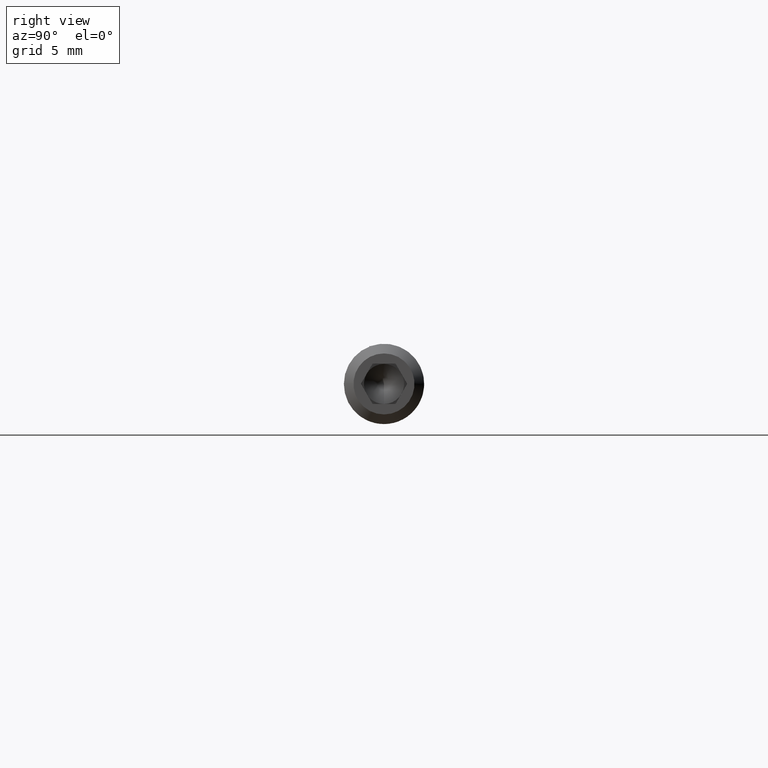
[diagram: clean part render]
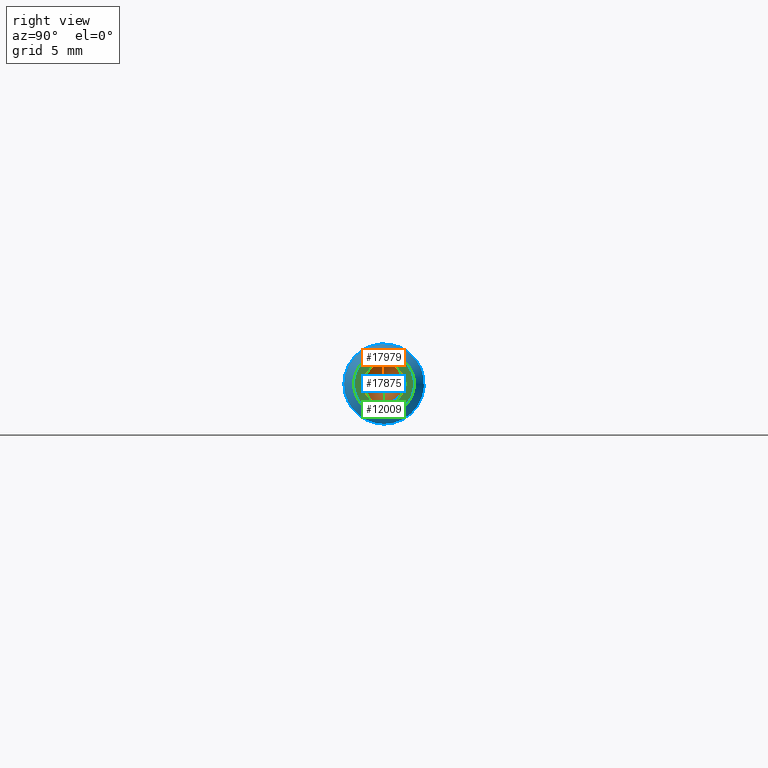
[diagram: same view with three faces highlighted in distinct colors, each labeled with its STEP entity id]
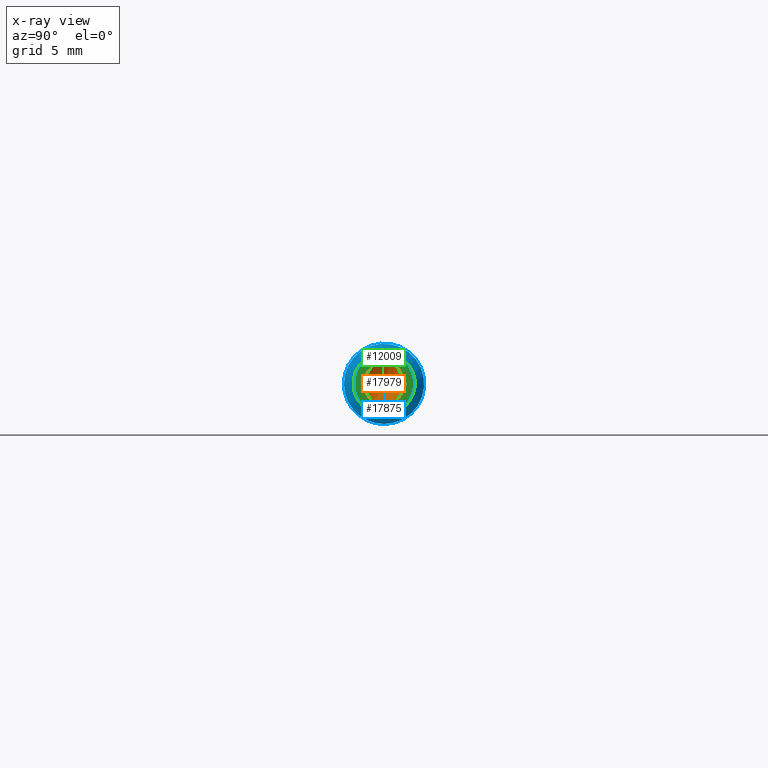
[diagram: x-ray of the same camera — body ghosted, the three highlighted faces saturated]
A machine part, right view with three faces highlighted in distinct colors.
The next image is the same camera in x-ray (body ghosted, the three faces saturated) — at least one of them is partly hidden behind the body in this view.
Their STEP definitions:

[orange] entity #17979 — the highlighted conical surface has half-angle 59 deg.
#641 = AXIS2_PLACEMENT_3D ( 'NONE', #951, #6253, #17963 ) ;
#951 = CARTESIAN_POINT ( 'NONE',  ( 42.00000000000000000, 0.0000000000000000000, -4.898587196589466700E-015 ) ) ;
#1722 = FACE_OUTER_BOUND ( 'NONE', #5932, .T. ) ;
#1808 = CIRCLE ( 'NONE', #641, 1.249999999999990500 ) ;
#2489 = AXIS2_PLACEMENT_3D ( 'NONE', #10662, #16459, #17911 ) ;
#2563 = ORIENTED_EDGE ( 'NONE', *, *, #7772, .F. ) ;
#2609 = CARTESIAN_POINT ( 'NONE',  ( 41.99999999999999300, 0.0000000000000000000, 8.924417258460140000E-015 ) ) ;
#3540 = CARTESIAN_POINT ( 'NONE',  ( 41.99999999999999300, -1.082531754730544900, -0.6249999999999919000 ) ) ;
#3791 = ORIENTED_EDGE ( 'NONE', *, *, #4127, .F. ) ;
#4127 = EDGE_CURVE ( 'NONE', #5895, #5189, #11882, .T. ) ;
#4390 = EDGE_CURVE ( 'NONE', #16680, #16486, #12774, .T. ) ;
#4396 = VERTEX_POINT ( 'NONE', #4914 ) ;
#4914 = CARTESIAN_POINT ( 'NONE',  ( 41.99999999999999300, -2.629050547790012400E-015, 1.250000000000002400 ) ) ;
#5173 = AXIS2_PLACEMENT_3D ( 'NONE', #16429, #14776, #11630 ) ;
#5189 = VERTEX_POINT ( 'NONE', #3540 ) ;
#5278 = EDGE_CURVE ( 'NONE', #5895, #16486, #1808, .T. ) ;
#5490 = DIRECTION ( 'NONE',  ( -1.000000000000000000, 0.0000000000000000000, 0.0000000000000000000 ) ) ;
#5632 = ORIENTED_EDGE ( 'NONE', *, *, #5278, .T. ) ;
#5895 = VERTEX_POINT ( 'NONE', #13547 ) ;
#5932 = EDGE_LOOP ( 'NONE', ( #5632, #9718, #13946, #2563, #12699, #3791 ) ) ;
#6253 = DIRECTION ( 'NONE',  ( 1.000000000000000000, -0.0000000000000000000, -6.644559210945707900E-015 ) ) ;
#6470 = DIRECTION ( 'NONE',  ( -1.000000000000000000, 0.0000000000000000000, 0.0000000000000000000 ) ) ;
#7242 = AXIS2_PLACEMENT_3D ( 'NONE', #16418, #6470, #18066 ) ;
#7420 = CARTESIAN_POINT ( 'NONE',  ( 41.99999999999999300, 1.082531754730547500, -0.6249999999999872300 ) ) ;
#7772 = EDGE_CURVE ( 'NONE', #10451, #4396, #15496, .T. ) ;
#8576 = EDGE_CURVE ( 'NONE', #5189, #10451, #13870, .T. ) ;
#9332 = CARTESIAN_POINT ( 'NONE',  ( 41.99999999999999300, 0.0000000000000000000, 8.924417258460140000E-015 ) ) ;
#9385 = CARTESIAN_POINT ( 'NONE',  ( 42.00000000000000700, -1.082531754730535800, 0.6249999999999980000 ) ) ;
#9718 = ORIENTED_EDGE ( 'NONE', *, *, #4390, .F. ) ;
#10321 = EDGE_CURVE ( 'NONE', #4396, #16680, #14898, .T. ) ;
#10330 = CARTESIAN_POINT ( 'NONE',  ( 41.99999999999999300, 0.0000000000000000000, 8.924417258460140000E-015 ) ) ;
#10355 = AXIS2_PLACEMENT_3D ( 'NONE', #2609, #5490, #15554 ) ;
#10451 = VERTEX_POINT ( 'NONE', #9385 ) ;
#10662 = CARTESIAN_POINT ( 'NONE',  ( 42.00000000000000000, 0.0000000000000000000, -4.898587196589466700E-015 ) ) ;
#10980 = AXIS2_PLACEMENT_3D ( 'NONE', #9332, #15234, #13818 ) ;
#11630 = DIRECTION ( 'NONE',  ( 0.0000000000000000000, 0.0000000000000000000, 1.000000000000000000 ) ) ;
#11882 = CIRCLE ( 'NONE', #10355, 1.249999999999978700 ) ;
#12670 = AXIS2_PLACEMENT_3D ( 'NONE', #10330, #17584, #14525 ) ;
#12699 = ORIENTED_EDGE ( 'NONE', *, *, #8576, .F. ) ;
#12774 = CIRCLE ( 'NONE', #5173, 1.249999999999978700 ) ;
#13547 = CARTESIAN_POINT ( 'NONE',  ( 41.99999999999999300, 3.192418522316472100E-015, -1.249999999999995600 ) ) ;
#13818 = DIRECTION ( 'NONE',  ( 0.0000000000000000000, 0.0000000000000000000, 1.000000000000000000 ) ) ;
#13870 = CIRCLE ( 'NONE', #12670, 1.249999999999978700 ) ;
#13946 = ORIENTED_EDGE ( 'NONE', *, *, #10321, .F. ) ;
#14525 = DIRECTION ( 'NONE',  ( 0.0000000000000000000, 0.0000000000000000000, 1.000000000000000000 ) ) ;
#14776 = DIRECTION ( 'NONE',  ( -1.000000000000000000, 0.0000000000000000000, 0.0000000000000000000 ) ) ;
#14898 = CIRCLE ( 'NONE', #10980, 1.249999999999978700 ) ;
#15234 = DIRECTION ( 'NONE',  ( -1.000000000000000000, 0.0000000000000000000, 0.0000000000000000000 ) ) ;
#15457 = CONICAL_SURFACE ( 'NONE', #2489, 1.249999999999990500, 1.029744258676647200 ) ;
#15496 = CIRCLE ( 'NONE', #7242, 1.249999999999978700 ) ;
#15554 = DIRECTION ( 'NONE',  ( 0.0000000000000000000, 0.0000000000000000000, 1.000000000000000000 ) ) ;
#16418 = CARTESIAN_POINT ( 'NONE',  ( 41.99999999999999300, 0.0000000000000000000, 8.924417258460140000E-015 ) ) ;
#16429 = CARTESIAN_POINT ( 'NONE',  ( 41.99999999999999300, 0.0000000000000000000, 8.924417258460140000E-015 ) ) ;
#16459 = DIRECTION ( 'NONE',  ( 1.000000000000000000, -0.0000000000000000000, -6.644559210945707900E-015 ) ) ;
#16486 = VERTEX_POINT ( 'NONE', #7420 ) ;
#16680 = VERTEX_POINT ( 'NONE', #16943 ) ;
#16943 = CARTESIAN_POINT ( 'NONE',  ( 42.00000000000000700, 1.082531754730532600, 0.6250000000000033300 ) ) ;
#17584 = DIRECTION ( 'NONE',  ( -1.000000000000000000, 0.0000000000000000000, 0.0000000000000000000 ) ) ;
#17911 = DIRECTION ( 'NONE',  ( -5.551115123125825300E-015, 0.0000000000000000000, -1.000000000000000000 ) ) ;
#17963 = DIRECTION ( 'NONE',  ( -5.551115123125825300E-015, 0.0000000000000000000, -1.000000000000000000 ) ) ;
#17979 = ADVANCED_FACE ( 'NONE', ( #1722 ), #15457, .F. ) ;
#18066 = DIRECTION ( 'NONE',  ( 0.0000000000000000000, 0.0000000000000000000, 1.000000000000000000 ) ) ;

[blue] entity #17875 — the highlighted conical surface has half-angle 45 deg.
#245 = CIRCLE ( 'NONE', #14493, 2.500000000000000000 ) ;
#350 = CARTESIAN_POINT ( 'NONE',  ( 44.39999999999999100, 0.0000000000000000000, -2.500000000000000000 ) ) ;
#457 = DIRECTION ( 'NONE',  ( -1.000000000000000000, 0.0000000000000000000, 0.0000000000000000000 ) ) ;
#1362 = ORIENTED_EDGE ( 'NONE', *, *, #15569, .F. ) ;
#1810 = CARTESIAN_POINT ( 'NONE',  ( 45.00000000000000000, 0.0000000000000000000, 0.0000000000000000000 ) ) ;
#3418 = EDGE_LOOP ( 'NONE', ( #1362 ) ) ;
#4582 = CARTESIAN_POINT ( 'NONE',  ( 45.00000000000000000, 0.0000000000000000000, -1.899999999999998100 ) ) ;
#6143 = CARTESIAN_POINT ( 'NONE',  ( 45.00000000000000000, 0.0000000000000000000, 0.0000000000000000000 ) ) ;
#7135 = DIRECTION ( 'NONE',  ( 0.0000000000000000000, 0.0000000000000000000, -1.000000000000000000 ) ) ;
#9099 = AXIS2_PLACEMENT_3D ( 'NONE', #1810, #13294, #10351 ) ;
#10034 = DIRECTION ( 'NONE',  ( -1.000000000000000000, 0.0000000000000000000, 0.0000000000000000000 ) ) ;
#10097 = CARTESIAN_POINT ( 'NONE',  ( 44.39999999999999100, 0.0000000000000000000, 0.0000000000000000000 ) ) ;
#10248 = VERTEX_POINT ( 'NONE', #4582 ) ;
#10351 = DIRECTION ( 'NONE',  ( 0.0000000000000000000, 0.0000000000000000000, -1.000000000000000000 ) ) ;
#11031 = ORIENTED_EDGE ( 'NONE', *, *, #14505, .F. ) ;
#13162 = EDGE_LOOP ( 'NONE', ( #11031 ) ) ;
#13223 = DIRECTION ( 'NONE',  ( 0.0000000000000000000, 0.0000000000000000000, 1.000000000000000000 ) ) ;
#13294 = DIRECTION ( 'NONE',  ( 1.000000000000000000, 0.0000000000000000000, 0.0000000000000000000 ) ) ;
#14493 = AXIS2_PLACEMENT_3D ( 'NONE', #10097, #10034, #7135 ) ;
#14505 = EDGE_CURVE ( 'NONE', #10248, #10248, #16678, .T. ) ;
#14544 = FACE_OUTER_BOUND ( 'NONE', #3418, .T. ) ;
#15569 = EDGE_CURVE ( 'NONE', #17708, #17708, #245, .T. ) ;
#16678 = CIRCLE ( 'NONE', #9099, 1.899999999999998100 ) ;
#16819 = CONICAL_SURFACE ( 'NONE', #16974, 1.899999999999998100, 0.7853981633974472800 ) ;
#16974 = AXIS2_PLACEMENT_3D ( 'NONE', #6143, #457, #13223 ) ;
#17074 = FACE_BOUND ( 'NONE', #13162, .T. ) ;
#17708 = VERTEX_POINT ( 'NONE', #350 ) ;
#17875 = ADVANCED_FACE ( 'NONE', ( #14544, #17074 ), #16819, .T. ) ;

[green] entity #12009 — the highlighted planar face has unit normal (1, 0, 0).
#252 = DIRECTION ( 'NONE',  ( 0.0000000000000000000, 1.000000000000000000, 2.553934817853168700E-015 ) ) ;
#329 = CARTESIAN_POINT ( 'NONE',  ( 45.00000000000000000, 0.0000000000000000000, 0.0000000000000000000 ) ) ;
#1023 = CARTESIAN_POINT ( 'NONE',  ( 45.00000000000000000, -0.7216878364870356100, 1.250000000000001100 ) ) ;
#1173 = DIRECTION ( 'NONE',  ( 0.0000000000000000000, 0.4999999999999979500, 0.8660254037844397100 ) ) ;
#1482 = ORIENTED_EDGE ( 'NONE', *, *, #14505, .T. ) ;
#1723 = ORIENTED_EDGE ( 'NONE', *, *, #3644, .F. ) ;
#1810 = CARTESIAN_POINT ( 'NONE',  ( 45.00000000000000000, 0.0000000000000000000, 0.0000000000000000000 ) ) ;
#2000 = LINE ( 'NONE', #13584, #12579 ) ;
#2003 = LINE ( 'NONE', #4129, #2671 ) ;
#2437 = CARTESIAN_POINT ( 'NONE',  ( 45.00000000000000000, -0.7216878364870356100, 1.250000000000001100 ) ) ;
#2671 = VECTOR ( 'NONE', #11405, 1000.000000000000100 ) ;
#3455 = CARTESIAN_POINT ( 'NONE',  ( 45.00000000000000000, 0.7216878364870301700, 1.250000000000004200 ) ) ;
#3464 = CARTESIAN_POINT ( 'NONE',  ( 45.00000000000000000, 0.7216878364870301700, 1.250000000000004200 ) ) ;
#3568 = DIRECTION ( 'NONE',  ( 0.0000000000000000000, -1.000000000000000000, -2.103240438232020900E-015 ) ) ;
#3599 = CARTESIAN_POINT ( 'NONE',  ( 45.00000000000000000, 0.7216878364870360500, -1.249999999999995300 ) ) ;
#3644 = EDGE_CURVE ( 'NONE', #6322, #9067, #2003, .T. ) ;
#3865 = ORIENTED_EDGE ( 'NONE', *, *, #11016, .F. ) ;
#4129 = CARTESIAN_POINT ( 'NONE',  ( 45.00000000000000000, -1.443375672974064300, 0.0000000000000000000 ) ) ;
#4582 = CARTESIAN_POINT ( 'NONE',  ( 45.00000000000000000, 0.0000000000000000000, -1.899999999999998100 ) ) ;
#5165 = LINE ( 'NONE', #2437, #8090 ) ;
#5536 = VERTEX_POINT ( 'NONE', #1023 ) ;
#6046 = EDGE_CURVE ( 'NONE', #5536, #6322, #5165, .T. ) ;
#6157 = EDGE_LOOP ( 'NONE', ( #1482 ) ) ;
#6322 = VERTEX_POINT ( 'NONE', #9829 ) ;
#6336 = LINE ( 'NONE', #3455, #13300 ) ;
#6754 = VECTOR ( 'NONE', #1173, 1000.000000000000100 ) ;
#7210 = FACE_BOUND ( 'NONE', #10074, .T. ) ;
#7670 = LINE ( 'NONE', #16897, #6754 ) ;
#7715 = DIRECTION ( 'NONE',  ( 1.000000000000000000, 0.0000000000000000000, 0.0000000000000000000 ) ) ;
#8090 = VECTOR ( 'NONE', #14094, 1000.000000000000200 ) ;
#8120 = AXIS2_PLACEMENT_3D ( 'NONE', #329, #7715, #16197 ) ;
#8461 = ORIENTED_EDGE ( 'NONE', *, *, #16203, .F. ) ;
#8894 = CARTESIAN_POINT ( 'NONE',  ( 45.00000000000000000, -0.7216878364870293900, -1.249999999999998900 ) ) ;
#9067 = VERTEX_POINT ( 'NONE', #9122 ) ;
#9099 = AXIS2_PLACEMENT_3D ( 'NONE', #1810, #13294, #10351 ) ;
#9122 = CARTESIAN_POINT ( 'NONE',  ( 45.00000000000000000, -0.7216878364870293900, -1.249999999999998900 ) ) ;
#9215 = ORIENTED_EDGE ( 'NONE', *, *, #6046, .F. ) ;
#9258 = LINE ( 'NONE', #8894, #17965 ) ;
#9284 = ORIENTED_EDGE ( 'NONE', *, *, #16051, .F. ) ;
#9707 = VERTEX_POINT ( 'NONE', #3599 ) ;
#9829 = CARTESIAN_POINT ( 'NONE',  ( 45.00000000000000000, -1.443375672974064300, 1.084202172485504400E-016 ) ) ;
#10074 = EDGE_LOOP ( 'NONE', ( #9215, #3865, #8461, #13893, #9284, #1723 ) ) ;
#10248 = VERTEX_POINT ( 'NONE', #4582 ) ;
#10351 = DIRECTION ( 'NONE',  ( 0.0000000000000000000, 0.0000000000000000000, -1.000000000000000000 ) ) ;
#10755 = VERTEX_POINT ( 'NONE', #3464 ) ;
#11016 = EDGE_CURVE ( 'NONE', #10755, #5536, #6336, .T. ) ;
#11405 = DIRECTION ( 'NONE',  ( 0.0000000000000000000, 0.5000000000000016700, -0.8660254037844376000 ) ) ;
#11561 = VERTEX_POINT ( 'NONE', #17905 ) ;
#11714 = EDGE_CURVE ( 'NONE', #9707, #11561, #7670, .T. ) ;
#12009 = ADVANCED_FACE ( 'NONE', ( #7210, #15091 ), #14732, .T. ) ;
#12579 = VECTOR ( 'NONE', #15112, 999.9999999999998900 ) ;
#13294 = DIRECTION ( 'NONE',  ( 1.000000000000000000, 0.0000000000000000000, 0.0000000000000000000 ) ) ;
#13300 = VECTOR ( 'NONE', #3568, 1000.000000000000000 ) ;
#13584 = CARTESIAN_POINT ( 'NONE',  ( 45.00000000000000000, 1.443375672974065200, 6.122830440433802600E-015 ) ) ;
#13893 = ORIENTED_EDGE ( 'NONE', *, *, #11714, .F. ) ;
#14094 = DIRECTION ( 'NONE',  ( 0.0000000000000000000, -0.4999999999999977800, -0.8660254037844399300 ) ) ;
#14505 = EDGE_CURVE ( 'NONE', #10248, #10248, #16678, .T. ) ;
#14732 = PLANE ( 'NONE',  #8120 ) ;
#15091 = FACE_OUTER_BOUND ( 'NONE', #6157, .T. ) ;
#15112 = DIRECTION ( 'NONE',  ( 0.0000000000000000000, -0.5000000000000020000, 0.8660254037844374900 ) ) ;
#16051 = EDGE_CURVE ( 'NONE', #9067, #9707, #9258, .T. ) ;
#16197 = DIRECTION ( 'NONE',  ( 0.0000000000000000000, 0.0000000000000000000, -1.000000000000000000 ) ) ;
#16203 = EDGE_CURVE ( 'NONE', #11561, #10755, #2000, .T. ) ;
#16678 = CIRCLE ( 'NONE', #9099, 1.899999999999998100 ) ;
#16897 = CARTESIAN_POINT ( 'NONE',  ( 45.00000000000000000, 0.7216878364870360500, -1.249999999999995300 ) ) ;
#17905 = CARTESIAN_POINT ( 'NONE',  ( 45.00000000000000000, 1.443375672974065200, 6.122830440433802600E-015 ) ) ;
#17965 = VECTOR ( 'NONE', #252, 1000.000000000000000 ) ;